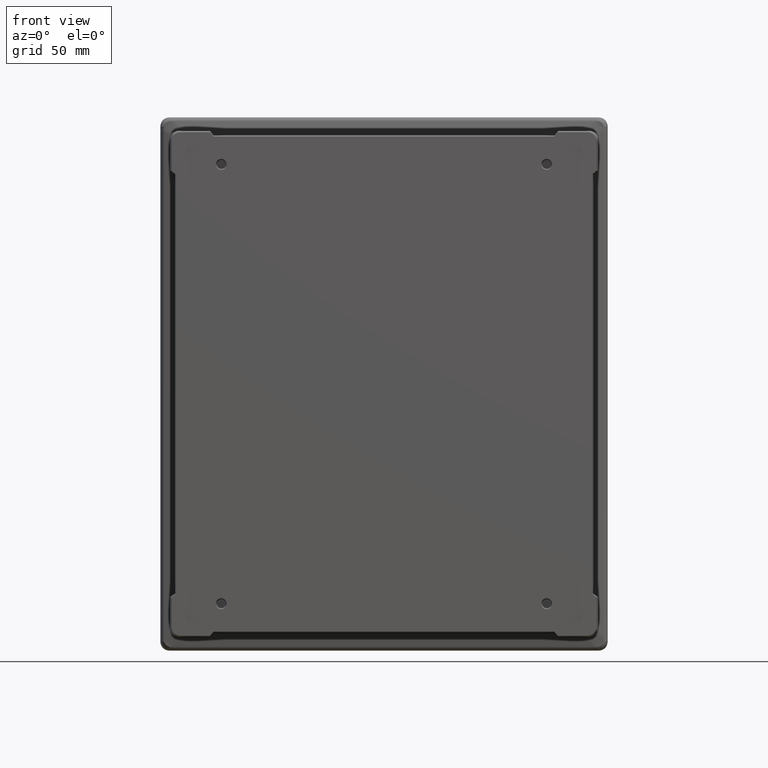
[diagram: clean part render]
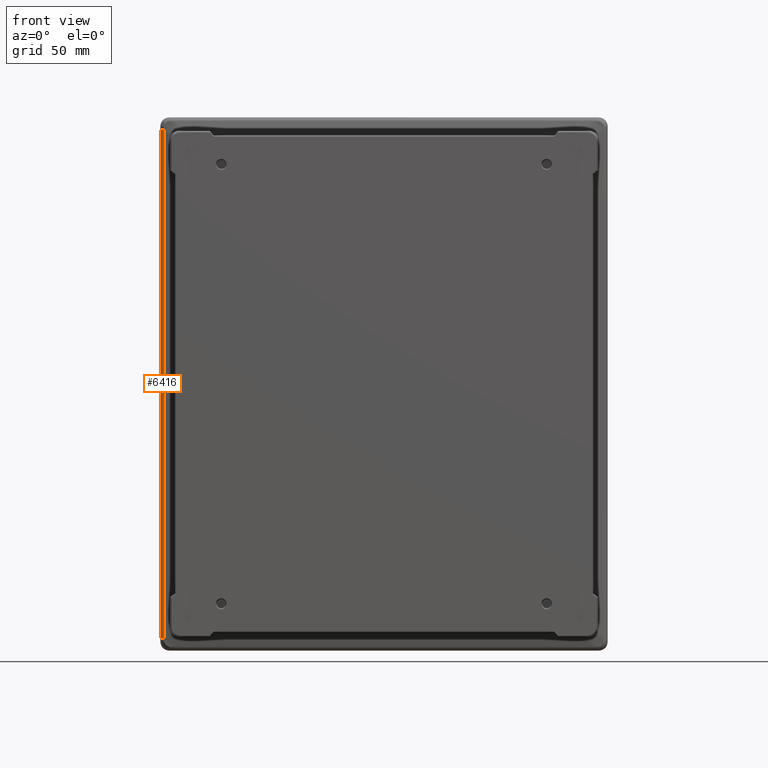
[diagram: same view with one face highlighted and labeled with its STEP entity id]
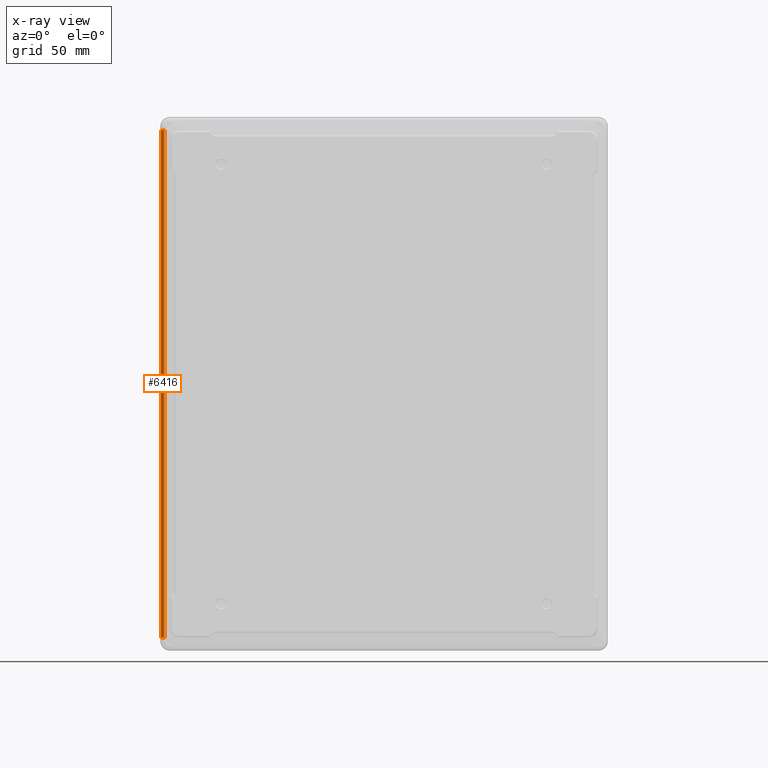
[diagram: x-ray of the same camera — body ghosted, the highlighted face saturated]
A machine part, front view. The second image highlights one B-rep face of the part: STEP entity #6416.
The next image is the same camera in x-ray: the body ghosted, the highlighted face saturated — about 0% of this face is hidden behind the body in this view.
In plain terms, the highlighted cylindrical surface (edge-blend (fillet) strip) has radius 2.5 mm, axis along (0, 0, -1).
Its self-contained STEP definition (entity closure, byte-faithful):
#161 = VECTOR ( 'NONE', #3612, 1000.000000000000000 ) ;
#372 = CYLINDRICAL_SURFACE ( 'NONE', #9810, 2.500000000000002200 ) ;
#1568 = CARTESIAN_POINT ( 'NONE',  ( -136.5442717728256800, -11.96072703721204500, 165.7745826525084300 ) ) ;
#3473 = CIRCLE ( 'NONE', #11695, 2.500000000000002200 ) ;
#3612 = DIRECTION ( 'NONE',  ( 0.0000000000000000000, 0.0000000000000000000, 1.000000000000000000 ) ) ;
#3750 = ORIENTED_EDGE ( 'NONE', *, *, #11657, .F. ) ;
#3922 = LINE ( 'NONE', #14455, #161 ) ;
#4528 = DIRECTION ( 'NONE',  ( 0.0000000000000000000, 0.0000000000000000000, 1.000000000000000000 ) ) ;
#5239 = AXIS2_PLACEMENT_3D ( 'NONE', #9744, #8681, #9957 ) ;
#5527 = EDGE_LOOP ( 'NONE', ( #8425, #3750, #14888, #14359 ) ) ;
#6068 = DIRECTION ( 'NONE',  ( -1.000000000000000000, 0.0000000000000000000, 0.0000000000000000000 ) ) ;
#6416 = ADVANCED_FACE ( 'NONE', ( #8219 ), #372, .T. ) ;
#6419 = CARTESIAN_POINT ( 'NONE',  ( -137.0640509998700600, -14.40609603904656100, 158.3543911931994900 ) ) ;
#6594 = CARTESIAN_POINT ( 'NONE',  ( -137.0640509998700900, -14.40609603904655100, -158.3543911931995800 ) ) ;
#6961 = EDGE_CURVE ( 'NONE', #8046, #7807, #9854, .T. ) ;
#7279 = VERTEX_POINT ( 'NONE', #6594 ) ;
#7807 = VERTEX_POINT ( 'NONE', #6419 ) ;
#8046 = VERTEX_POINT ( 'NONE', #13999 ) ;
#8219 = FACE_OUTER_BOUND ( 'NONE', #5527, .T. ) ;
#8240 = VERTEX_POINT ( 'NONE', #12094 ) ;
#8425 = ORIENTED_EDGE ( 'NONE', *, *, #10931, .T. ) ;
#8509 = DIRECTION ( 'NONE',  ( -0.0000000000000000000, -0.0000000000000000000, -1.000000000000000000 ) ) ;
#8681 = DIRECTION ( 'NONE',  ( 0.0000000000000000000, 0.0000000000000000000, 1.000000000000000000 ) ) ;
#8841 = LINE ( 'NONE', #13103, #12151 ) ;
#9744 = CARTESIAN_POINT ( 'NONE',  ( -136.5442717728256800, -11.96072703721204700, 158.3543911931994900 ) ) ;
#9810 = AXIS2_PLACEMENT_3D ( 'NONE', #1568, #9864, #6068 ) ;
#9854 = CIRCLE ( 'NONE', #5239, 2.500000000000002200 ) ;
#9864 = DIRECTION ( 'NONE',  ( 0.0000000000000000000, 0.0000000000000000000, -1.000000000000000000 ) ) ;
#9957 = DIRECTION ( 'NONE',  ( 1.000000000000000000, 0.0000000000000000000, 0.0000000000000000000 ) ) ;
#10931 = EDGE_CURVE ( 'NONE', #8240, #7279, #3473, .T. ) ;
#11657 = EDGE_CURVE ( 'NONE', #7807, #7279, #8841, .T. ) ;
#11695 = AXIS2_PLACEMENT_3D ( 'NONE', #15176, #4528, #14961 ) ;
#12094 = CARTESIAN_POINT ( 'NONE',  ( -139.0427488403734300, -12.04797577896829900, -158.3543911931995500 ) ) ;
#12151 = VECTOR ( 'NONE', #8509, 1000.000000000000000 ) ;
#13103 = CARTESIAN_POINT ( 'NONE',  ( -137.0640509998700600, -14.40609603904656100, 165.7745826525084300 ) ) ;
#13999 = CARTESIAN_POINT ( 'NONE',  ( -139.0427488403734300, -12.04797577896829900, 158.3543911931994900 ) ) ;
#14359 = ORIENTED_EDGE ( 'NONE', *, *, #15031, .F. ) ;
#14455 = CARTESIAN_POINT ( 'NONE',  ( -139.0427488403734300, -12.04797577896829900, -166.2634734253929000 ) ) ;
#14888 = ORIENTED_EDGE ( 'NONE', *, *, #6961, .F. ) ;
#14961 = DIRECTION ( 'NONE',  ( 1.000000000000000000, 0.0000000000000000000, 0.0000000000000000000 ) ) ;
#15031 = EDGE_CURVE ( 'NONE', #8240, #8046, #3922, .T. ) ;
#15176 = CARTESIAN_POINT ( 'NONE',  ( -136.5442717728256800, -11.96072703721204400, -158.3543911931995500 ) ) ;